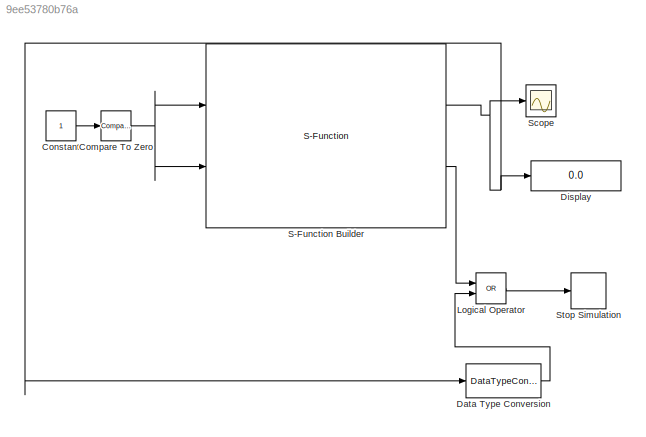
MODEL slx_9ee53780b76a
KIND model
BLOCK [Reference] Compare To Zero  REF=simulink/Logic and Bit
Operations/Compare
To Zero
  OutDataTypeStr = boolean
  Ports = [1, 1]
  SourceBlock = simulink/Logic and Bit\nOperations/Compare\nTo Zero
  SourceType = Compare To Zero
  ZeroCross = on
  relop = >
BLOCK [Constant] Constant
BLOCK [DataTypeConversion] Data Type Conversion
  OutDataTypeStr = boolean
  OutMax = [1]
  OutMin = [0]
  RndMeth = Round
  SaturateOnIntegerOverflow = off
BLOCK [Display] Display
  Decimation = 1
  Lockdown = off
  Ports = [1]
BLOCK [Logic] Logical Operator
  AllPortsSameDT = off
  Operator = OR
  OutDataTypeStr = boolean
  Ports = [2, 1]
BLOCK [S-Function] S-Function Builder
  CopyFcn = set_param(gcbh,'LinkStatus','none')
  EnableBusSupport = off
  FunctionName = BBB_Driver_GPIO_Read
  InitFcn = try, set_param(gcb,'FunctionName','BBB_Driver_GPIO_Read'), end
  OpenFcn = sfunctionwizard(gcbh)
  Parameters = uint16(49),uint16(4)
  Ports = [2, 2]
  PreSaveFcn = try, set_param(gcb,'FunctionName','BBB_Driver_GPIO_Read'), end
  SFunctionModules = BBB_Driver_GPIO_Read_wrapper
BLOCK [Scope] Scope
  DataFormat = StructureWithTime
  Floating = off
  NumInputPorts = 1
  Ports = [1]
  SampleTime = 0
  ShowLegends = off
BLOCK [Stop] Stop Simulation
NET Compare To Zero:1 -> S-Function Builder:1, S-Function Builder:2
LINE Constant:1 -> Compare To Zero:1
LINE Data Type Conversion:1 -> Logical Operator:2
LINE Logical Operator:1 -> Stop Simulation:1
NET S-Function Builder:1 -> Data Type Conversion:1, Display:1, Scope:1
LINE S-Function Builder:2 -> Logical Operator:1
note: NET lines group one-source signal fan-out (src -> all destinations, sorted); 1:1 wires keep LINE
